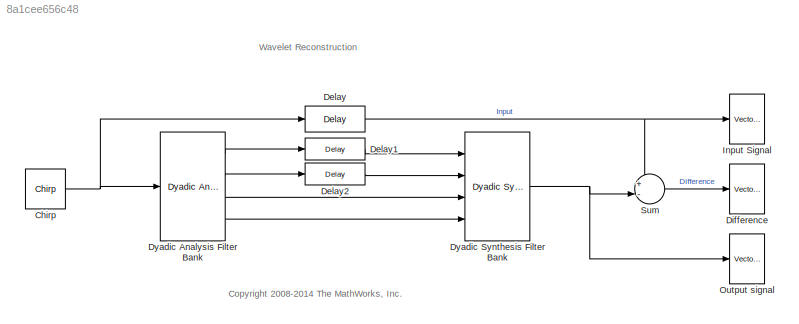
MODEL slx_8a1cee656c48
KIND model
CONFIG AbsTol = auto
CONFIG EnableMultiTasking = on
CONFIG FixedStep = auto
CONFIG MaxStep = auto
CONFIG MinStep = auto
CONFIG RelTol = 1e-3
CONFIG SampleTimeConstraint = Unconstrained
CONFIG Solver = FixedStepDiscrete
CONFIG SolverName = FixedStepDiscrete
CONFIG StartTime = 0.0
CONFIG StopTime = 1024
WORKSPACE source: external: MAT-File  (data not in archive)
BLOCK [Reference] Chirp  REF=dspsrcs4/Chirp
  Ports = [0, 1]
  SourceBlock = dspsrcs4/Chirp
  SourceType = Chirp
BLOCK [Delay] Delay
  DelayLength = 77
  InitialCondition = 0
  InputPortMap = u0
  InputProcessing = Columns as channels (frame based)
  Ports = [1, 1]
BLOCK [Delay] Delay1
  DelayLength = 33
  InitialCondition = 0
  InputPortMap = u0
  InputProcessing = Columns as channels (frame based)
  Ports = [1, 1]
BLOCK [Delay] Delay2
  DelayLength = 11
  InitialCondition = 0
  InputPortMap = u0
  InputProcessing = Columns as channels (frame based)
  Ports = [1, 1]
BLOCK [Reference] Difference  REF=dspsnks4/Vector
Scope
  Ports = [1]
  SourceBlock = dspsnks4/Vector\nScope
  SourceType = Vector Scope
BLOCK [Reference] Dyadic Analysis Filter Bank  REF=dspmlti4/Dyadic Analysis
Filter Bank
  Ports = [1, 4]
  SourceBlock = dspmlti4/Dyadic Analysis\nFilter Bank
  SourceType = Dyadic Analysis Filter Bank
BLOCK [Reference] Dyadic Synthesis Filter Bank  REF=dspmlti4/Dyadic Synthesis
Filter Bank
  Ports = [4, 1]
  SourceBlock = dspmlti4/Dyadic Synthesis\nFilter Bank
  SourceType = Dyadic Synthesis Filter Bank
BLOCK [Reference] Input Signal  REF=dspsnks4/Vector
Scope
  Ports = [1]
  SourceBlock = dspsnks4/Vector\nScope
  SourceType = Vector Scope
BLOCK [Reference] Output signal  REF=dspsnks4/Vector
Scope
  Ports = [1]
  SourceBlock = dspsnks4/Vector\nScope
  SourceType = Vector Scope
BLOCK [Sum] Sum
  IconShape = round
  Inputs = +-|
  Ports = [2, 1]
ANNOTATION (root): <copyright redacted>
ANNOTATION (root): Wavelet Reconstruction
NET Chirp:1 -> Delay:1, Dyadic Analysis Filter Bank:1
LINE Delay1:1 -> Dyadic Synthesis Filter Bank:1
LINE Delay2:1 -> Dyadic Synthesis Filter Bank:2
NET Delay:1 -> Input Signal:1, Sum:1
LINE Dyadic Analysis Filter Bank:1 -> Delay1:1
LINE Dyadic Analysis Filter Bank:2 -> Delay2:1
LINE Dyadic Analysis Filter Bank:3 -> Dyadic Synthesis Filter Bank:3
LINE Dyadic Analysis Filter Bank:4 -> Dyadic Synthesis Filter Bank:4
NET Dyadic Synthesis Filter Bank:1 -> Output signal:1, Sum:2
LINE Sum:1 -> Difference:1
note: NET lines group one-source signal fan-out (src -> all destinations, sorted); 1:1 wires keep LINE
